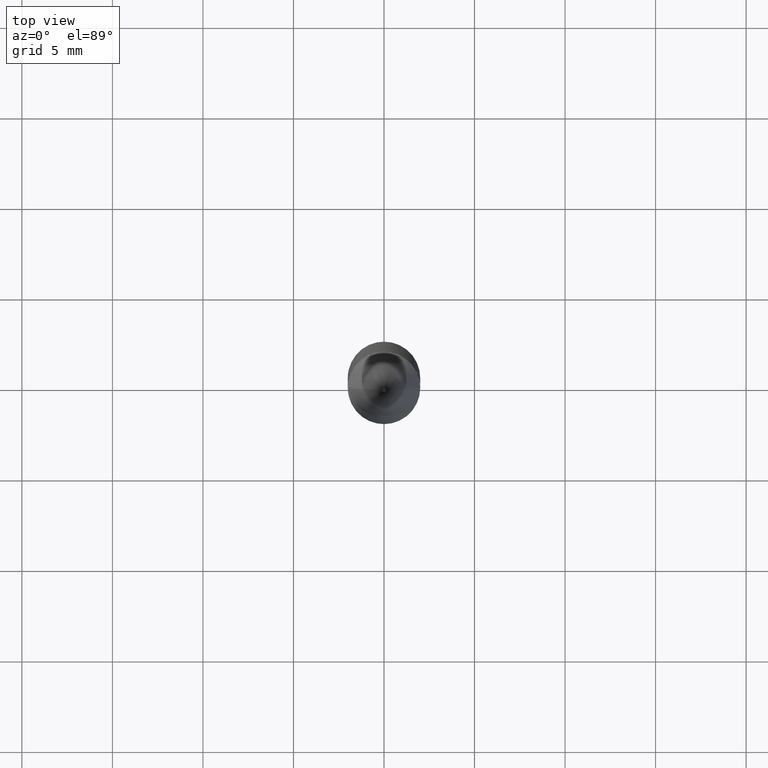
[diagram: clean part render]
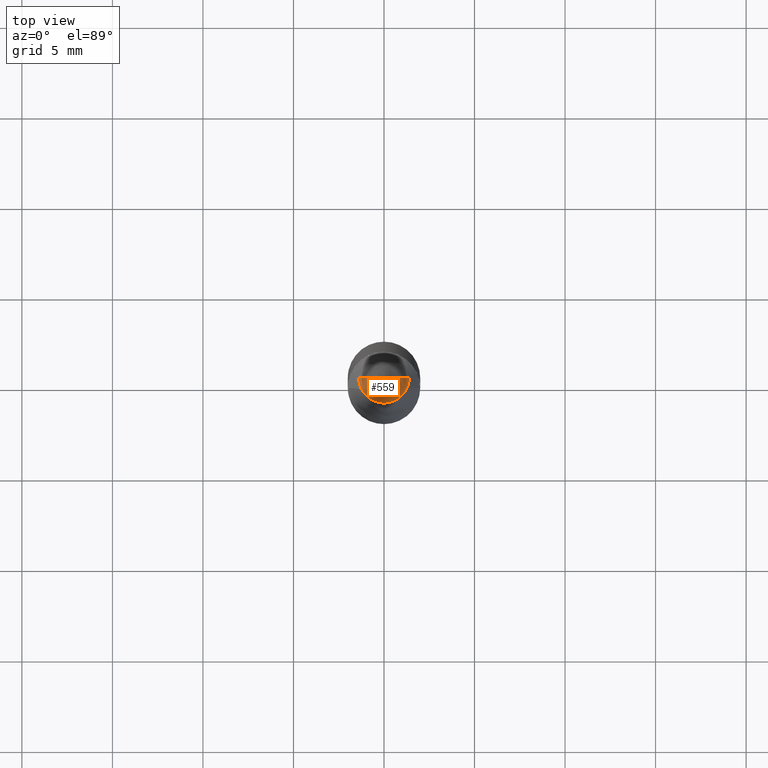
[diagram: same view with one face highlighted and labeled with its STEP entity id]
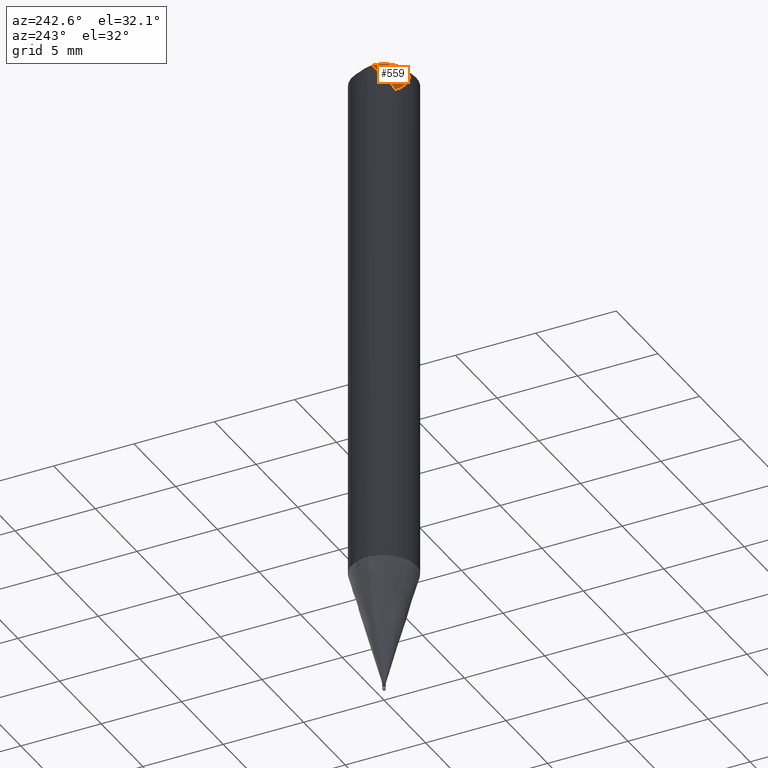
[diagram: same view with one face highlighted and labeled with its STEP entity id]
A machine part, top view. The second image highlights one B-rep face of the part: STEP entity #559.
A second angle (auxiliary view) of the same face is appended — the face is thin or edge-on in the first view.
In plain terms, the highlighted face is a freeform B-spline surface patch.
Its self-contained STEP definition (entity closure, byte-faithful):
#205=CARTESIAN_POINT('',(1.4,0.0,32.41));
#209=CARTESIAN_POINT('',(-1.4,0.0,32.41));
#210=CARTESIAN_POINT('',(0.0,0.0,32.41));
#220=CARTESIAN_POINT('',(-1.4,-1.4,32.41));
#221=CARTESIAN_POINT('',(0.0,-1.4,32.41));
#222=CARTESIAN_POINT('',(1.4,-1.4,32.41));
#544=(
BOUNDED_SURFACE()
B_SPLINE_SURFACE(1,2,(
(#209,#220,#221,#222,#205),
(#210,#210,#210,#210,#210)
), .UNSPECIFIED.,.F.,.F.,.F.)
B_SPLINE_SURFACE_WITH_KNOTS((2,2),(3,2,3),(
0.0,1.0),(
0.0,0.5,1.0), .UNSPECIFIED.)
GEOMETRIC_REPRESENTATION_ITEM()
RATIONAL_B_SPLINE_SURFACE(((1.0,0.707106781187,1.0,0.707106781187,1.0),
(1.0,0.707106781187,1.0,0.707106781187,1.0)
))
REPRESENTATION_ITEM('')
SURFACE()
);
#545=(
BOUNDED_CURVE()
B_SPLINE_CURVE(1,(#210,#205),.UNSPECIFIED.,.F.,.F.)
B_SPLINE_CURVE_WITH_KNOTS((2,2),
(0.0,1.0),.UNSPECIFIED.)
CURVE()
GEOMETRIC_REPRESENTATION_ITEM()
RATIONAL_B_SPLINE_CURVE((1.0,1.0))
REPRESENTATION_ITEM('')
);
#546=(
BOUNDED_CURVE()
B_SPLINE_CURVE(2,(#205,#222,#221,#220,#209),.UNSPECIFIED.,.F.,.F.)
B_SPLINE_CURVE_WITH_KNOTS((3,2,3),
(0.0,0.5,1.0),.UNSPECIFIED.)
CURVE()
GEOMETRIC_REPRESENTATION_ITEM()
RATIONAL_B_SPLINE_CURVE((1.0,0.707106781187,1.0,0.707106781187,1.0))
REPRESENTATION_ITEM('')
);
#547=(
BOUNDED_CURVE()
B_SPLINE_CURVE(1,(#209,#210),.UNSPECIFIED.,.F.,.F.)
B_SPLINE_CURVE_WITH_KNOTS((2,2),
(0.0,1.0),.UNSPECIFIED.)
CURVE()
GEOMETRIC_REPRESENTATION_ITEM()
RATIONAL_B_SPLINE_CURVE((1.0,1.0))
REPRESENTATION_ITEM('')
);
#548=VERTEX_POINT('',#205);
#549=VERTEX_POINT('',#209);
#550=VERTEX_POINT('',#210);
#551=EDGE_CURVE('',#550,#548,#545,.T.);
#552=EDGE_CURVE('',#548,#549,#546,.T.);
#553=EDGE_CURVE('',#549,#550,#547,.T.);
#554=ORIENTED_EDGE('',*,*,#551,.T.);
#555=ORIENTED_EDGE('',*,*,#552,.T.);
#556=ORIENTED_EDGE('',*,*,#553,.T.);
#557=EDGE_LOOP('',(#554,#555,#556));
#558=FACE_OUTER_BOUND('',#557,.T.);
#559=ADVANCED_FACE('',(#558),#544,.T.);